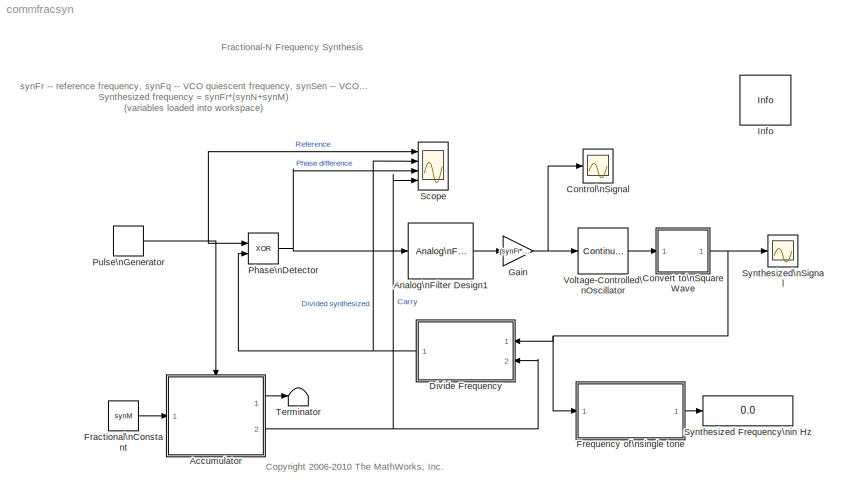
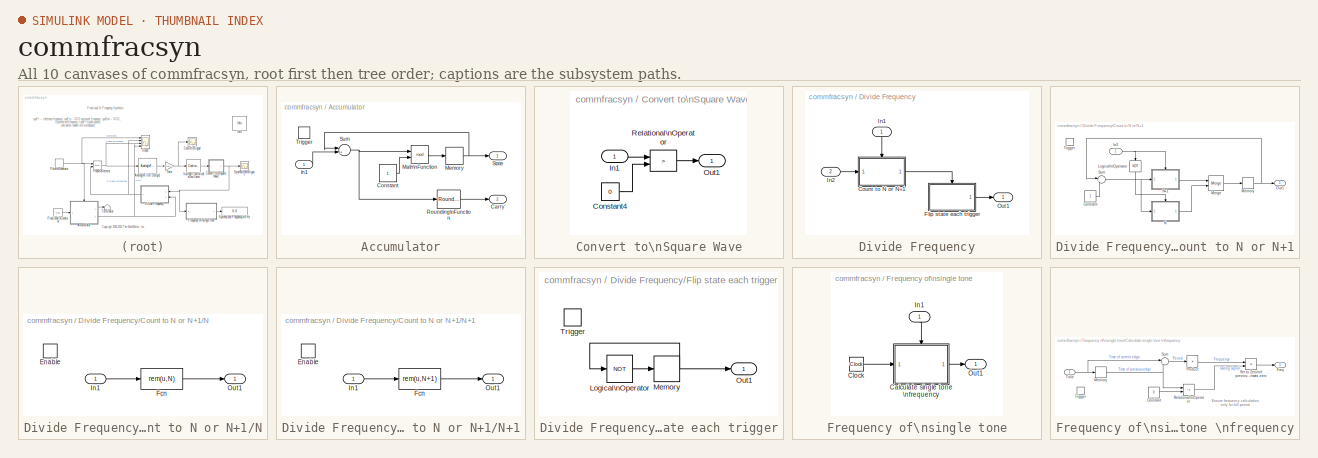
[diagram: thumbnail index - all 10 canvases of the model, root first then tree order]
MODEL commfracsyn
KIND model
CONFIG PreLoadFcn = synM=.3;    % Fractional factor\nsynN=10;    % Fractional factor\nsynFr=1e7;   % Reference frequency\nsynFq=9e7;   % VCO quiescent frequency\nsynSen=1e7;   % VCO sensitivity
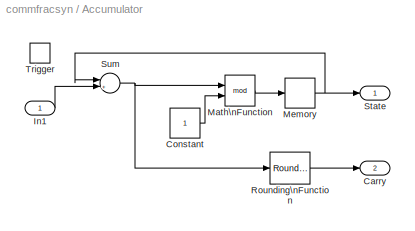
BLOCK [SubSystem] Accumulator
  Ports = [1, 2, 0, 1]
  RequestExecContextInheritance = off
  SID = 1
  TreatAsAtomicUnit = on
BLOCK [Outport] Accumulator/Carry
  IconDisplay = Port number
  Port = 2
  SID = 10
BLOCK [Constant] Accumulator/Constant
  SID = 4
BLOCK [Inport] Accumulator/In1
  IconDisplay = Port number
  SID = 2
BLOCK [Math] Accumulator/Math\nFunction
  Operator = mod
  Ports = [2, 1]
  SID = 5
BLOCK [Memory] Accumulator/Memory
  InheritSampleTime = on
  SID = 6
BLOCK [Rounding] Accumulator/Rounding\nFunction
  SID = 7
BLOCK [Outport] Accumulator/State
  IconDisplay = Port number
  SID = 9
BLOCK [Sum] Accumulator/Sum
  IconShape = round
  Inputs = |++
  Ports = [2, 1]
  SID = 8
BLOCK [TriggerPort] Accumulator/Trigger
  Ports = []
  SID = 3
  VariantControl = (inherit)
  ZeroCross = off
BLOCK [Reference] Analog\nFilter Design1  REF=dsparch4/Analog\nFilter Design
  N = 1
  Ports = [1, 1]
  Rp = 2
  Rs = 40
  SID = 11
  SourceBlock = dsparch4/Analog\nFilter Design
  SourceProductBaseCode = DS
  SourceProductName = DSP System Toolbox
  SourceType = Analog Filter Design
  Whi = 80
  Wlo = synFr/15
  filttype = Lowpass
  method = Butterworth
BLOCK [Scope] Control\nSignal
  Floating = off
  NumInputPorts = 1
  Ports = [1]
  SID = 12
  ScopeSpecificationString = Simulink.scopes.TimeScopeBlockCfg('CurrentConfiguration', extmgr.ConfigurationSet(extmgr.Configuration('Core','General UI',true,'FigureColor',[1 1 1]),extmgr.Configuration('Core','Source UI',true),extmgr.Configuration('Sources','WiredSimulink',true,'DataLoggingVariableName','ScopeData1','DataLoggingSaveFormat','StructureWithTime','DataLoggingMaxPoints','50000','DataLoggingDecimation','1','DataLogg...<+1821ch>
BLOCK [SubSystem] Convert to\nSquare Wave
  Ports = [1, 1]
  RequestExecContextInheritance = off
  SID = 13
BLOCK [Constant] Convert to\nSquare Wave/Constant4
  SID = 15
  Value = 0
BLOCK [Inport] Convert to\nSquare Wave/In1
  IconDisplay = Port number
  SID = 14
BLOCK [Outport] Convert to\nSquare Wave/Out1
  IconDisplay = Port number
  SID = 17
BLOCK [RelationalOperator] Convert to\nSquare Wave/Relational\nOperator
  Operator = >
  Ports = [2, 1]
  SID = 16
BLOCK [SubSystem] Divide Frequency
  Ports = [2, 1]
  RequestExecContextInheritance = off
  SID = 18
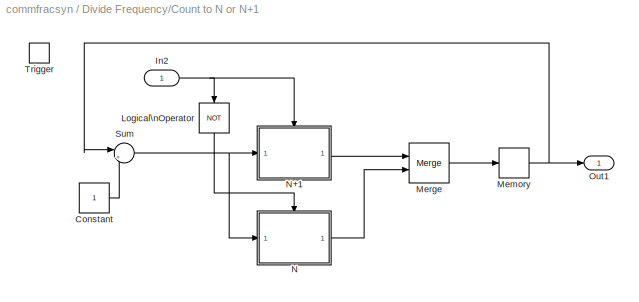
BLOCK [SubSystem] Divide Frequency/Count to N or N+1
  Ports = [1, 1, 0, 1]
  RequestExecContextInheritance = off
  SID = 21
  TreatAsAtomicUnit = on
BLOCK [Constant] Divide Frequency/Count to N or N+1/Constant
  SID = 24
BLOCK [Inport] Divide Frequency/Count to N or N+1/In2
  IconDisplay = Port number
  SID = 22
BLOCK [Logic] Divide Frequency/Count to N or N+1/Logical\nOperator
  Operator = NOT
  Ports = [1, 1]
  SID = 25
BLOCK [Memory] Divide Frequency/Count to N or N+1/Memory
  InheritSampleTime = on
  InitialCondition = 1
  SID = 26
BLOCK [Merge] Divide Frequency/Count to N or N+1/Merge
  Ports = [2, 1]
  SID = 27
BLOCK [SubSystem] Divide Frequency/Count to N or N+1/N
  Ports = [1, 1, 1]
  RequestExecContextInheritance = off
  SID = 28
  TreatAsAtomicUnit = on
BLOCK [SubSystem] Divide Frequency/Count to N or N+1/N+1
  Ports = [1, 1, 1]
  RequestExecContextInheritance = off
  SID = 33
  TreatAsAtomicUnit = on
BLOCK [EnablePort] Divide Frequency/Count to N or N+1/N+1/Enable
  Ports = []
  SID = 35
  ZeroCross = off
BLOCK [Fcn] Divide Frequency/Count to N or N+1/N+1/Fcn
  Expr = rem(u,N+1)
  SID = 36
BLOCK [Inport] Divide Frequency/Count to N or N+1/N+1/In1
  IconDisplay = Port number
  SID = 34
BLOCK [Outport] Divide Frequency/Count to N or N+1/N+1/Out1
  IconDisplay = Port number
  SID = 37
BLOCK [EnablePort] Divide Frequency/Count to N or N+1/N/Enable
  Ports = []
  SID = 30
  ZeroCross = off
BLOCK [Fcn] Divide Frequency/Count to N or N+1/N/Fcn
  Expr = rem(u,N)
  SID = 31
BLOCK [Inport] Divide Frequency/Count to N or N+1/N/In1
  IconDisplay = Port number
  SID = 29
BLOCK [Outport] Divide Frequency/Count to N or N+1/N/Out1
  IconDisplay = Port number
  SID = 32
BLOCK [Outport] Divide Frequency/Count to N or N+1/Out1
  IconDisplay = Port number
  SID = 39
BLOCK [Sum] Divide Frequency/Count to N or N+1/Sum
  IconShape = round
  Inputs = |++
  Ports = [2, 1]
  SID = 38
BLOCK [TriggerPort] Divide Frequency/Count to N or N+1/Trigger
  Ports = []
  SID = 23
  TriggerType = either
  VariantControl = (inherit)
  ZeroCross = off
BLOCK [SubSystem] Divide Frequency/Flip state each trigger
  Ports = [0, 1, 0, 1]
  RequestExecContextInheritance = off
  SID = 40
  TreatAsAtomicUnit = on
BLOCK [Logic] Divide Frequency/Flip state each trigger/Logical\nOperator
  Operator = NOT
  Ports = [1, 1]
  SID = 42
BLOCK [Memory] Divide Frequency/Flip state each trigger/Memory
  InheritSampleTime = on
  InitialCondition = 1
  SID = 43
BLOCK [Outport] Divide Frequency/Flip state each trigger/Out1
  IconDisplay = Port number
  InitialOutput = 0
  SID = 44
BLOCK [TriggerPort] Divide Frequency/Flip state each trigger/Trigger
  Ports = []
  SID = 41
  TriggerType = falling
  VariantControl = (inherit)
  ZeroCross = off
BLOCK [Inport] Divide Frequency/In1
  IconDisplay = Port number
  SID = 19
BLOCK [Inport] Divide Frequency/In2
  IconDisplay = Port number
  Port = 2
  SID = 20
BLOCK [Outport] Divide Frequency/Out1
  IconDisplay = Port number
  SID = 45
BLOCK [Constant] Fractional\nConstant
  SID = 46
  Value = synM
BLOCK [SubSystem] Frequency of\nsingle tone
  Ports = [1, 1]
  RequestExecContextInheritance = off
  SID = 47
BLOCK [SubSystem] Frequency of\nsingle tone/Calculate single tone \nfrequency
  Ports = [1, 1, 0, 1]
  RequestExecContextInheritance = off
  SID = 49
  TreatAsAtomicUnit = on
BLOCK [Constant] Frequency of\nsingle tone/Calculate single tone \nfrequency/Constant
  SID = 52
  Value = 0
BLOCK [Outport] Frequency of\nsingle tone/Calculate single tone \nfrequency/Freq
  IconDisplay = Port number
  InitialOutput = 0
  SID = 58
BLOCK [Memory] Frequency of\nsingle tone/Calculate single tone \nfrequency/Memory
  InheritSampleTime = on
  SID = 53
BLOCK [Product] Frequency of\nsingle tone/Calculate single tone \nfrequency/Product
  Inputs = /
  Ports = [1, 1]
  RndMeth = Floor
  SID = 54
BLOCK [RelationalOperator] Frequency of\nsingle tone/Calculate single tone \nfrequency/Relational\nOperator
  Operator = ~=
  Ports = [2, 1]
  SID = 55
BLOCK [Product] Frequency of\nsingle tone/Calculate single tone \nfrequency/Set to Zero\nif previous time\nwas zero
  Ports = [2, 1]
  RndMeth = Floor
  SID = 56
BLOCK [Sum] Frequency of\nsingle tone/Calculate single tone \nfrequency/Sum
  IconShape = round
  Inputs = |+-
  Ports = [2, 1]
  SID = 57
BLOCK [Inport] Frequency of\nsingle tone/Calculate single tone \nfrequency/Time
  IconDisplay = Port number
  SID = 50
BLOCK [TriggerPort] Frequency of\nsingle tone/Calculate single tone \nfrequency/Trigger
  Ports = []
  SID = 51
  VariantControl = (inherit)
  ZeroCross = off
BLOCK [Clock] Frequency of\nsingle tone/Clock
  Decimation = 1
  SID = 59
BLOCK [Inport] Frequency of\nsingle tone/In1
  IconDisplay = Port number
  SID = 48
BLOCK [Outport] Frequency of\nsingle tone/Out1
  IconDisplay = Port number
  SID = 60
BLOCK [Gain] Gain
  Gain = (synFr*synN-synFq)*3/synSen
  SID = 61
BLOCK [Reference] Info  REF=commblksprivate/Info
  AllowZeroVariantControls = off
  GeneratePreprocessorConditionals = off
  Ports = []
  PropagateVariantConditions = off
  SID = 62
  ShowPortLabels = FromPortIcon
  SourceBlock = commblksprivate/Info
  SourceProductBaseCode = CM
  SourceProductName = Communications System Toolbox
  SourceType = Info
  SystemSampleTime = -1
BLOCK [Logic] Phase\nDetector
  Operator = XOR
  Ports = [2, 1]
  SID = 63
BLOCK [DiscretePulseGenerator] Pulse\nGenerator
  Period = 1/synFr
  Ports = [0, 1]
  PulseType = Time based
  PulseWidth = 50
  SID = 64
BLOCK [Scope] Scope
  Floating = off
  NumInputPorts = 4
  Ports = [4]
  SID = 65
  ScopeSpecificationString = Simulink.scopes.TimeScopeBlockCfg('CurrentConfiguration', extmgr.ConfigurationSet(extmgr.Configuration('Core','General UI',true,'FigureColor',[1 1 1]),extmgr.Configuration('Core','Source UI',true),extmgr.Configuration('Sources','WiredSimulink',true,'DataLoggingVariableName','ScopeData8','DataLoggingSaveFormat','StructureWithTime','DataLoggingLimitDataPoints',true,'DataLoggingDecimation','1','DataL...<+4386ch>
BLOCK [Display] Synthesized Frequency\nin Hz
  Decimation = 1
  Ports = [1]
  SID = 67
BLOCK [Scope] Synthesized\nSignal
  Floating = off
  NumInputPorts = 1
  Ports = [1]
  SID = 66
  ScopeSpecificationString = Simulink.scopes.TimeScopeBlockCfg('CurrentConfiguration', extmgr.ConfigurationSet(extmgr.Configuration('Core','General UI',true,'FigureColor',[1 1 1]),extmgr.Configuration('Core','Source UI',true),extmgr.Configuration('Sources','WiredSimulink',true,'DataLoggingVariableName','ScopeData2','DataLoggingSaveFormat','StructureWithTime','DataLoggingMaxPoints','50000','DataLoggingLimitDataPoints',true,'Da...<+1915ch>
BLOCK [Terminator] Terminator
  SID = 68
BLOCK [Reference] Voltage-Controlled\nOscillator  REF=commsynccomp2/Continuous-Time\nVCO
  Ac = 1
  Fc = synFq
  Kc = synSen
  Ph = 0
  Ports = [1, 1]
  SID = 69
  SourceBlock = commsynccomp2/Continuous-Time\nVCO
  SourceProductBaseCode = CM
  SourceProductName = Communications System Toolbox
  SourceType = Continuous-Time VCO
ANNOTATION (root): <copyright redacted>
ANNOTATION (root): Fractional-N Frequency Synthesis
ANNOTATION (root): synFr -- reference frequency, synFq -- VCO quiescent frequency, synSen -- VCO sensitivity\nSynthesized frequency = synFr*(synN+synM)\n(variables loaded into workspace)
ANNOTATION Frequency of\nsingle tone/Calculate single tone \nfrequency: Ensure frequency calculation\nonly for full period
LINE Accumulator/Constant:1 -> Accumulator/Math\nFunction:2
LINE Accumulator/In1:1 -> Accumulator/Sum:2
LINE Accumulator/Math\nFunction:1 -> Accumulator/Memory:1
NET Accumulator/Memory:1 -> Accumulator/State:1, Accumulator/Sum:1
LINE Accumulator/Rounding\nFunction:1 -> Accumulator/Carry:1
NET Accumulator/Sum:1 -> Accumulator/Math\nFunction:1, Accumulator/Rounding\nFunction:1
LINE Accumulator:1 -> Terminator:1
NET Accumulator:2 -> Divide Frequency:2, Scope:4
LINE Analog\nFilter Design1:1 -> Gain:1
LINE Convert to\nSquare Wave/Constant4:1 -> Convert to\nSquare Wave/Relational\nOperator:2
LINE Convert to\nSquare Wave/In1:1 -> Convert to\nSquare Wave/Relational\nOperator:1
LINE Convert to\nSquare Wave/Relational\nOperator:1 -> Convert to\nSquare Wave/Out1:1
NET Convert to\nSquare Wave:1 -> Divide Frequency:1, Frequency of\nsingle tone:1, Synthesized\nSignal:1
LINE Divide Frequency/Count to N or N+1/Constant:1 -> Divide Frequency/Count to N or N+1/Sum:2
NET Divide Frequency/Count to N or N+1/In2:1 -> Divide Frequency/Count to N or N+1/Logical\nOperator:1, Divide Frequency/Count to N or N+1/N+1:enable
LINE Divide Frequency/Count to N or N+1/Logical\nOperator:1 -> Divide Frequency/Count to N or N+1/N:enable
NET Divide Frequency/Count to N or N+1/Memory:1 -> Divide Frequency/Count to N or N+1/Out1:1, Divide Frequency/Count to N or N+1/Sum:1
LINE Divide Frequency/Count to N or N+1/Merge:1 -> Divide Frequency/Count to N or N+1/Memory:1
LINE Divide Frequency/Count to N or N+1/N+1/Fcn:1 -> Divide Frequency/Count to N or N+1/N+1/Out1:1
LINE Divide Frequency/Count to N or N+1/N+1/In1:1 -> Divide Frequency/Count to N or N+1/N+1/Fcn:1
LINE Divide Frequency/Count to N or N+1/N+1:1 -> Divide Frequency/Count to N or N+1/Merge:1
LINE Divide Frequency/Count to N or N+1/N/Fcn:1 -> Divide Frequency/Count to N or N+1/N/Out1:1
LINE Divide Frequency/Count to N or N+1/N/In1:1 -> Divide Frequency/Count to N or N+1/N/Fcn:1
LINE Divide Frequency/Count to N or N+1/N:1 -> Divide Frequency/Count to N or N+1/Merge:2
NET Divide Frequency/Count to N or N+1/Sum:1 -> Divide Frequency/Count to N or N+1/N+1:1, Divide Frequency/Count to N or N+1/N:1
LINE Divide Frequency/Count to N or N+1:1 -> Divide Frequency/Flip state each trigger:trigger
LINE Divide Frequency/Flip state each trigger/Logical\nOperator:1 -> Divide Frequency/Flip state each trigger/Memory:1
NET Divide Frequency/Flip state each trigger/Memory:1 -> Divide Frequency/Flip state each trigger/Logical\nOperator:1, Divide Frequency/Flip state each trigger/Out1:1
LINE Divide Frequency/Flip state each trigger:1 -> Divide Frequency/Out1:1
LINE Divide Frequency/In1:1 -> Divide Frequency/Count to N or N+1:trigger
LINE Divide Frequency/In2:1 -> Divide Frequency/Count to N or N+1:1
NET Divide Frequency:1 -> Phase\nDetector:2, Scope:2
LINE Fractional\nConstant:1 -> Accumulator:1
LINE Frequency of\nsingle tone/Calculate single tone \nfrequency/Constant:1 -> Frequency of\nsingle tone/Calculate single tone \nfrequency/Relational\nOperator:2
NET Frequency of\nsingle tone/Calculate single tone \nfrequency/Memory:1 -> Frequency of\nsingle tone/Calculate single tone \nfrequency/Relational\nOperator:1, Frequency of\nsingle tone/Calculate single tone \nfrequency/Sum:2
LINE Frequency of\nsingle tone/Calculate single tone \nfrequency/Product:1 -> Frequency of\nsingle tone/Calculate single tone \nfrequency/Set to Zero\nif previous time\nwas zero:1
LINE Frequency of\nsingle tone/Calculate single tone \nfrequency/Relational\nOperator:1 -> Frequency of\nsingle tone/Calculate single tone \nfrequency/Set to Zero\nif previous time\nwas zero:2
LINE Frequency of\nsingle tone/Calculate single tone \nfrequency/Set to Zero\nif previous time\nwas zero:1 -> Frequency of\nsingle tone/Calculate single tone \nfrequency/Freq:1
LINE Frequency of\nsingle tone/Calculate single tone \nfrequency/Sum:1 -> Frequency of\nsingle tone/Calculate single tone \nfrequency/Product:1
NET Frequency of\nsingle tone/Calculate single tone \nfrequency/Time:1 -> Frequency of\nsingle tone/Calculate single tone \nfrequency/Memory:1, Frequency of\nsingle tone/Calculate single tone \nfrequency/Sum:1
LINE Frequency of\nsingle tone/Calculate single tone \nfrequency:1 -> Frequency of\nsingle tone/Out1:1
LINE Frequency of\nsingle tone/Clock:1 -> Frequency of\nsingle tone/Calculate single tone \nfrequency:1
LINE Frequency of\nsingle tone/In1:1 -> Frequency of\nsingle tone/Calculate single tone \nfrequency:trigger
LINE Frequency of\nsingle tone:1 -> Synthesized Frequency\nin Hz:1
NET Gain:1 -> Control\nSignal:1, Voltage-Controlled\nOscillator:1
NET Phase\nDetector:1 -> Analog\nFilter Design1:1, Scope:3
NET Pulse\nGenerator:1 -> Accumulator:trigger, Phase\nDetector:1, Scope:1
LINE Voltage-Controlled\nOscillator:1 -> Convert to\nSquare Wave:1
note: NET lines group one-source signal fan-out (src -> all destinations, sorted); 1:1 wires keep LINE
